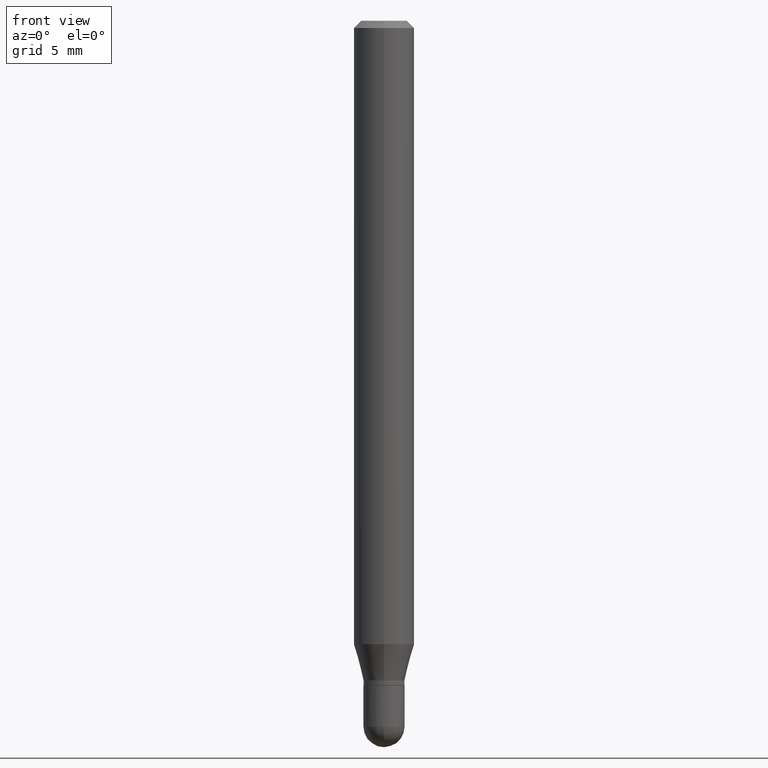
[diagram: clean part render]
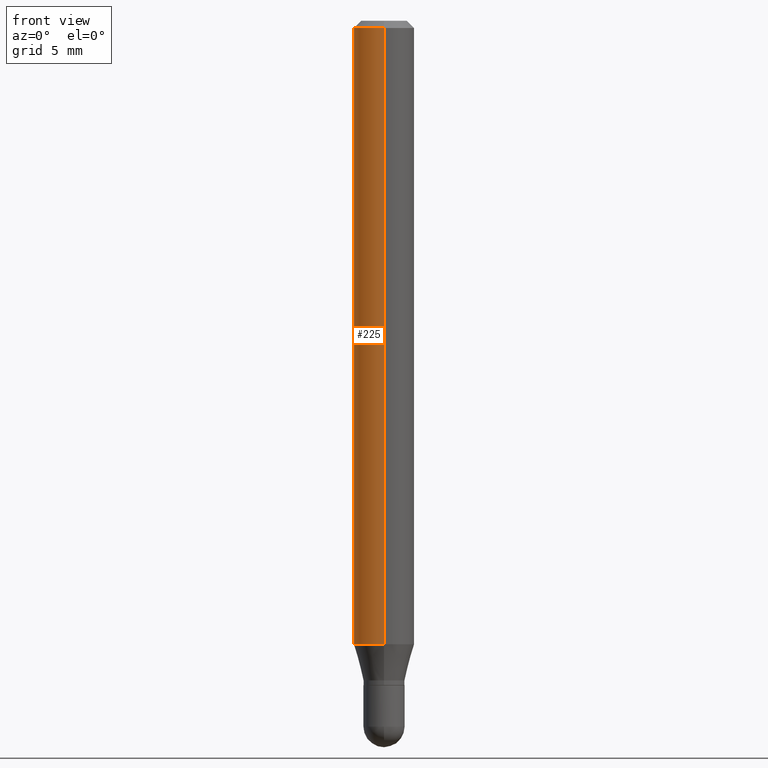
[diagram: same view with one face highlighted and labeled with its STEP entity id]
A machine part, front view. The second image highlights one B-rep face of the part: STEP entity #225.
In plain terms, the highlighted cylindrical surface (edge-blend (fillet) strip) has radius 1.5875 mm, axis along (-0, 0, 1).
Its self-contained STEP definition (entity closure, byte-faithful):
#11 = CARTESIAN_POINT ( 'NONE',  ( 3.668073872160100859E-31, -5.237407226378546385E-17, -0.01500000000000000812 ) ) ;
#47 = DIRECTION ( 'NONE',  ( -2.445382581440065838E-29, 3.491604817585695634E-15, 1.000000000000000000 ) ) ;
#61 = EDGE_CURVE ( 'NONE', #372, #486, #498, .T. ) ;
#70 = CARTESIAN_POINT ( 'NONE',  ( 0.000000000000000000, 0.000000000000000000, 0.000000000000000000 ) ) ;
#75 = FACE_OUTER_BOUND ( 'NONE', #278, .T. ) ;
#76 = CARTESIAN_POINT ( 'NONE',  ( 3.148085235163804015E-29, -4.494948829968075208E-15, -1.287358983848622573 ) ) ;
#86 = AXIS2_PLACEMENT_3D ( 'NONE', #76, #200, #163 ) ;
#92 = VERTEX_POINT ( 'NONE', #98 ) ;
#98 = CARTESIAN_POINT ( 'NONE',  ( -4.364351673553598192E-16, -0.06250000000000445477, -1.287358983848622129 ) ) ;
#152 = ORIENTED_EDGE ( 'NONE', *, *, #265, .F. ) ;
#163 = DIRECTION ( 'NONE',  ( -6.982962677686265922E-15, -1.000000000000000000, 4.370956789862821150E-15 ) ) ;
#167 = ORIENTED_EDGE ( 'NONE', *, *, #279, .T. ) ;
#196 = VECTOR ( 'NONE', #47, 39.37007874015748143 ) ;
#200 = DIRECTION ( 'NONE',  ( -2.445382581440065558E-29, 3.491604817585695240E-15, 1.000000000000000000 ) ) ;
#208 = VERTEX_POINT ( 'NONE', #228 ) ;
#209 = CARTESIAN_POINT ( 'NONE',  ( -4.364351673553916201E-16, -0.06250000000000000000, 2.182253010991059525E-16 ) ) ;
#213 = ORIENTED_EDGE ( 'NONE', *, *, #250, .T. ) ;
#225 = ADVANCED_FACE ( 'NONE', ( #75 ), #235, .T. ) ;
#228 = CARTESIAN_POINT ( 'NONE',  ( -4.364351673553912750E-16, -0.06250000000000005551, -0.01499999999999979128 ) ) ;
#235 = CYLINDRICAL_SURFACE ( 'NONE', #241, 0.06250000000000000000 ) ;
#236 = DIRECTION ( 'NONE',  ( -2.445382581440065558E-29, 3.491604817585695240E-15, 1.000000000000000000 ) ) ;
#241 = AXIS2_PLACEMENT_3D ( 'NONE', #70, #383, #509 ) ;
#250 = EDGE_CURVE ( 'NONE', #372, #92, #311, .T. ) ;
#265 = EDGE_CURVE ( 'NONE', #486, #208, #375, .T. ) ;
#267 = VECTOR ( 'NONE', #494, 39.37007874015748143 ) ;
#278 = EDGE_LOOP ( 'NONE', ( #322, #213, #167, #152 ) ) ;
#279 = EDGE_CURVE ( 'NONE', #92, #208, #359, .T. ) ;
#299 = CARTESIAN_POINT ( 'NONE',  ( 4.440892098500625669E-16, 0.06250000000000000000, -2.182253010991059525E-16 ) ) ;
#311 = CIRCLE ( 'NONE', #86, 0.06250000000000000000 ) ;
#322 = ORIENTED_EDGE ( 'NONE', *, *, #61, .F. ) ;
#340 = CARTESIAN_POINT ( 'NONE',  ( 4.440892098500942692E-16, 0.06249999999999995143, -0.01500000000000022669 ) ) ;
#359 = LINE ( 'NONE', #209, #196 ) ;
#372 = VERTEX_POINT ( 'NONE', #392 ) ;
#375 = CIRCLE ( 'NONE', #440, 0.06250000000000000000 ) ;
#383 = DIRECTION ( 'NONE',  ( -2.445382581440065558E-29, 3.491604817585695240E-15, 1.000000000000000000 ) ) ;
#392 = CARTESIAN_POINT ( 'NONE',  ( 4.440892098500941706E-16, 0.06249999999999553135, -1.287358983848622795 ) ) ;
#440 = AXIS2_PLACEMENT_3D ( 'NONE', #11, #236, #487 ) ;
#486 = VERTEX_POINT ( 'NONE', #340 ) ;
#487 = DIRECTION ( 'NONE',  ( -6.982962677686265922E-15, -1.000000000000000000, 3.483106191921935554E-15 ) ) ;
#494 = DIRECTION ( 'NONE',  ( -2.445382581440065838E-29, 3.491604817585695634E-15, 1.000000000000000000 ) ) ;
#498 = LINE ( 'NONE', #299, #267 ) ;
#509 = DIRECTION ( 'NONE',  ( -6.982962677686265922E-15, -1.000000000000000000, 3.491604817585695240E-15 ) ) ;